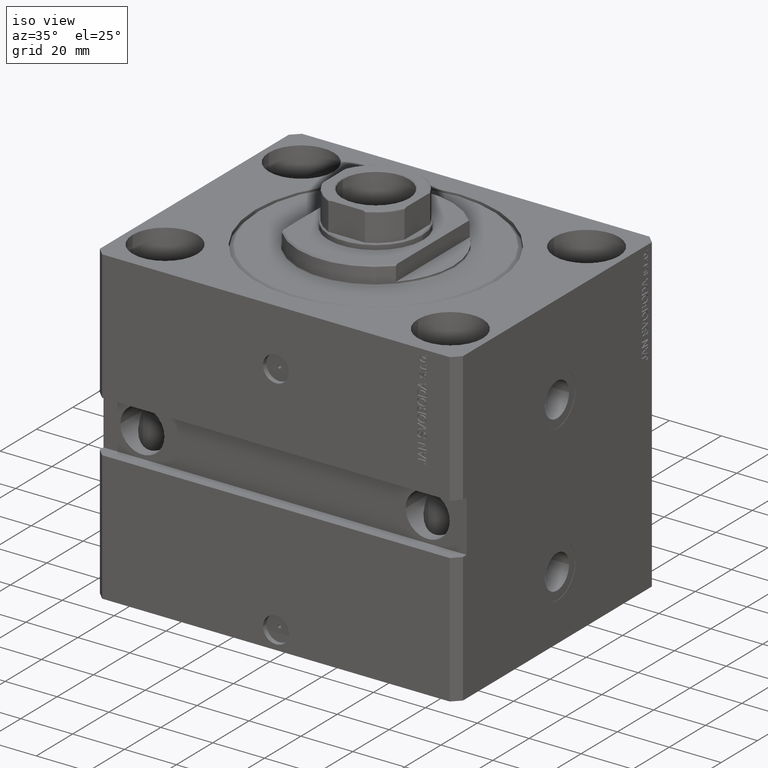
[diagram: clean part render]
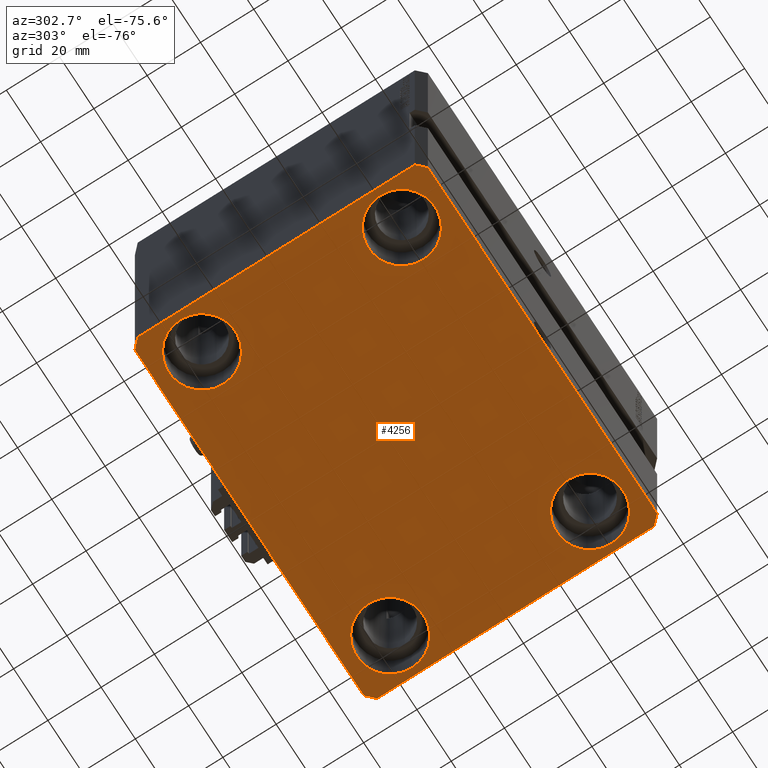
[diagram: tour spotlight — one face highlighted and labeled with its STEP entity id]
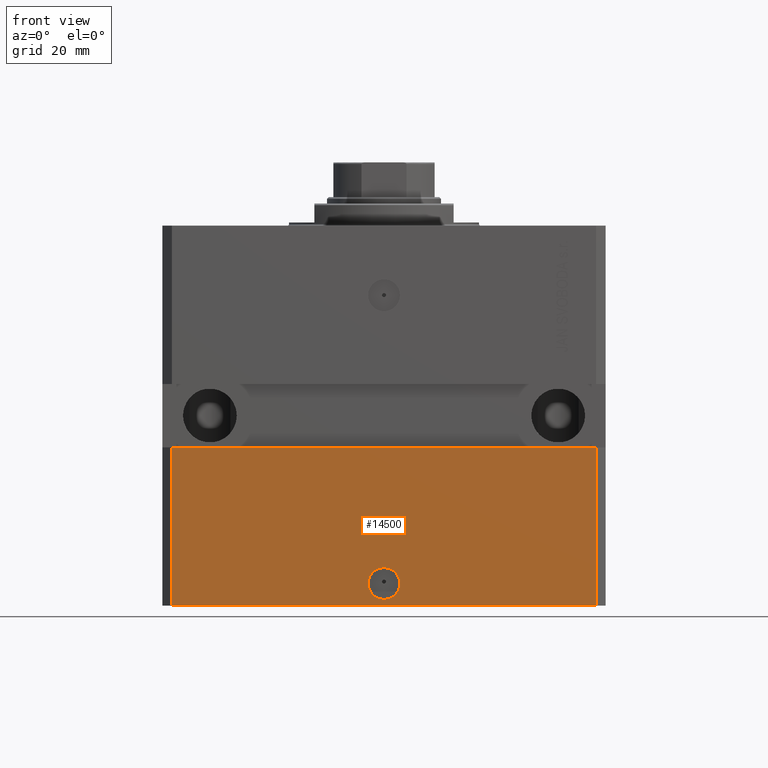
[diagram: tour spotlight — one face highlighted and labeled with its STEP entity id]
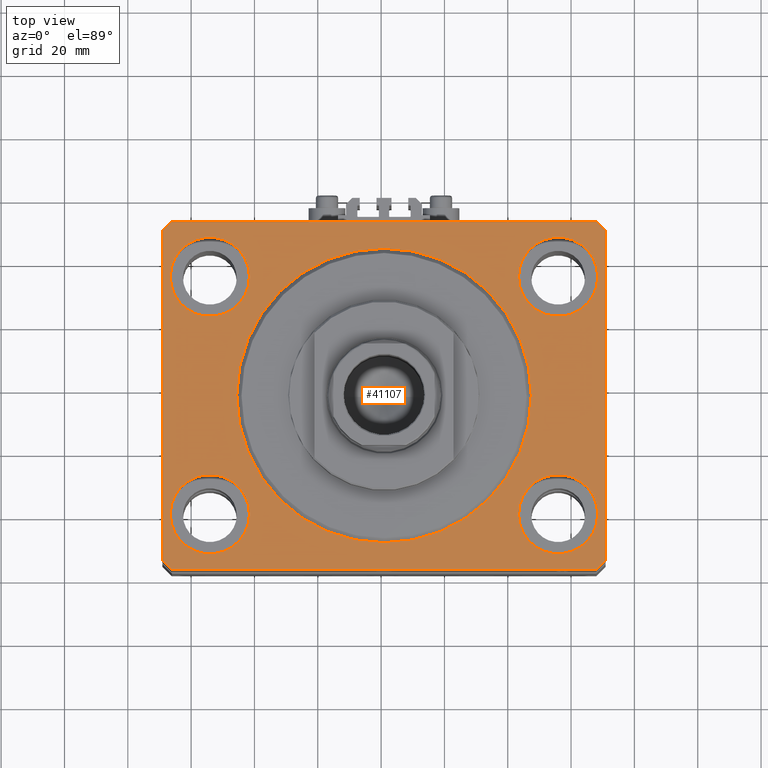
[diagram: tour spotlight — one face highlighted and labeled with its STEP entity id]
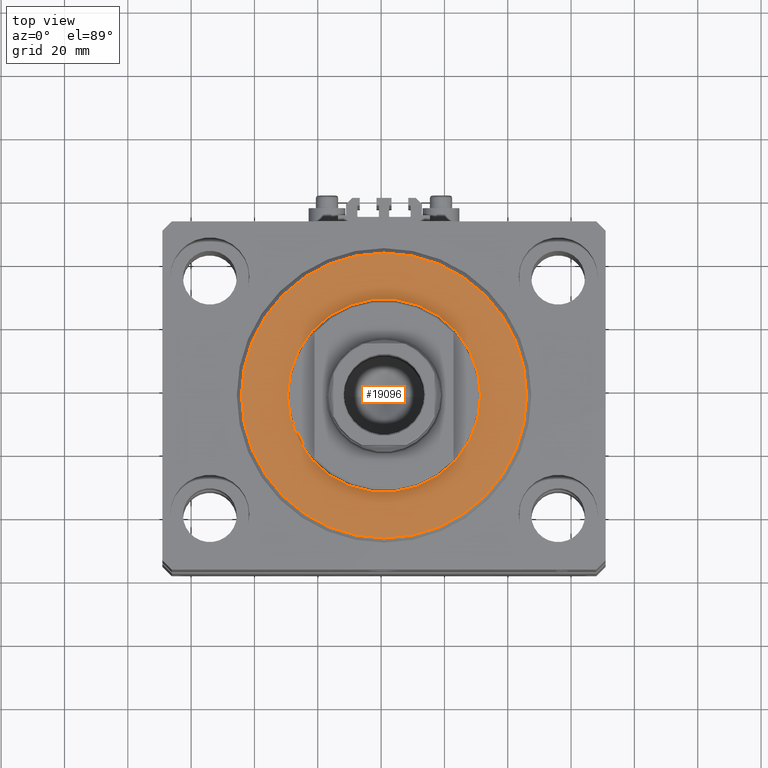
[diagram: tour spotlight — one face highlighted and labeled with its STEP entity id]
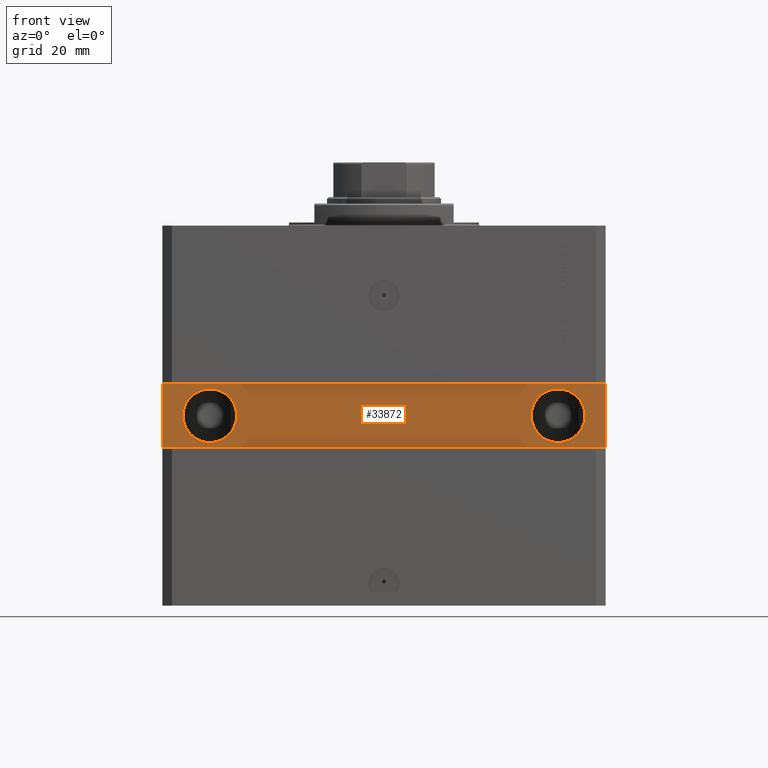
[diagram: tour spotlight — one face highlighted and labeled with its STEP entity id]
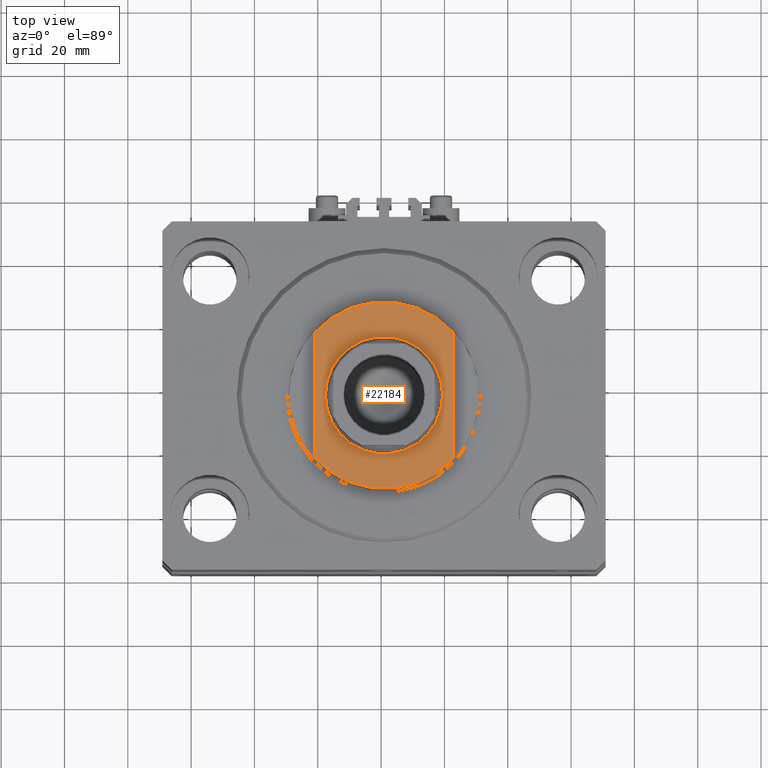
[diagram: tour spotlight — one face highlighted and labeled with its STEP entity id]
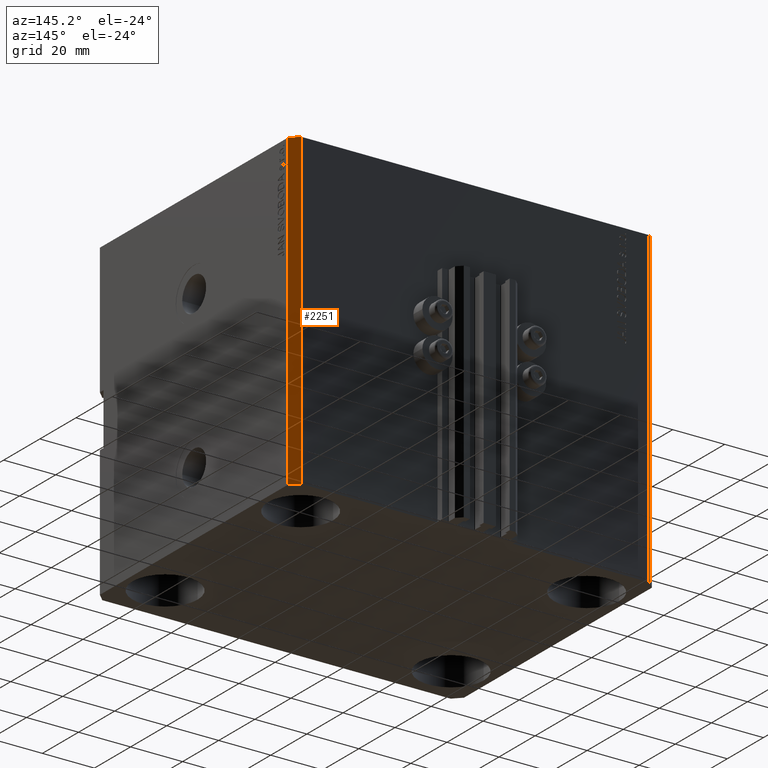
[diagram: tour spotlight — one face highlighted and labeled with its STEP entity id]
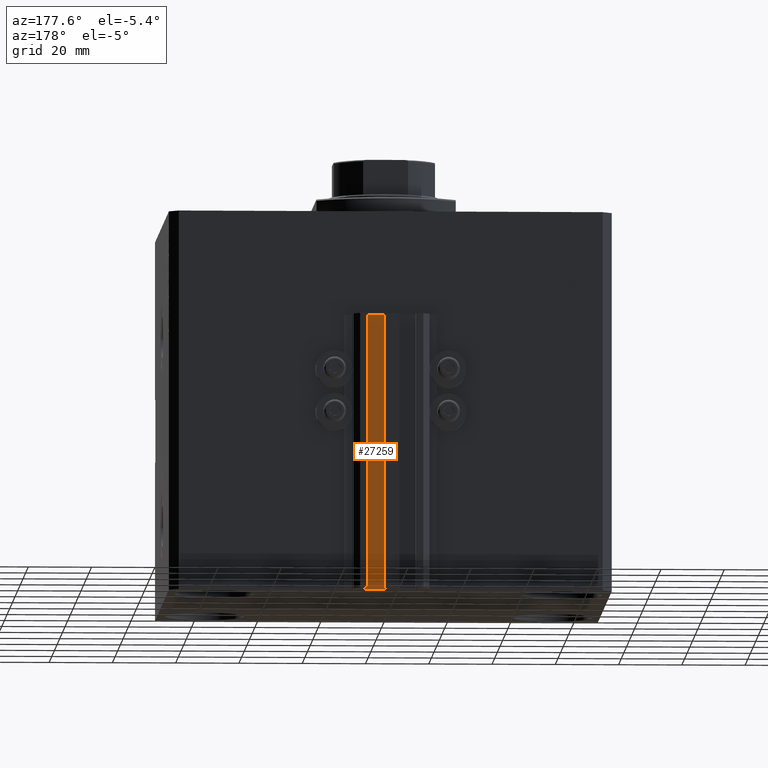
[diagram: tour spotlight — one face highlighted and labeled with its STEP entity id]
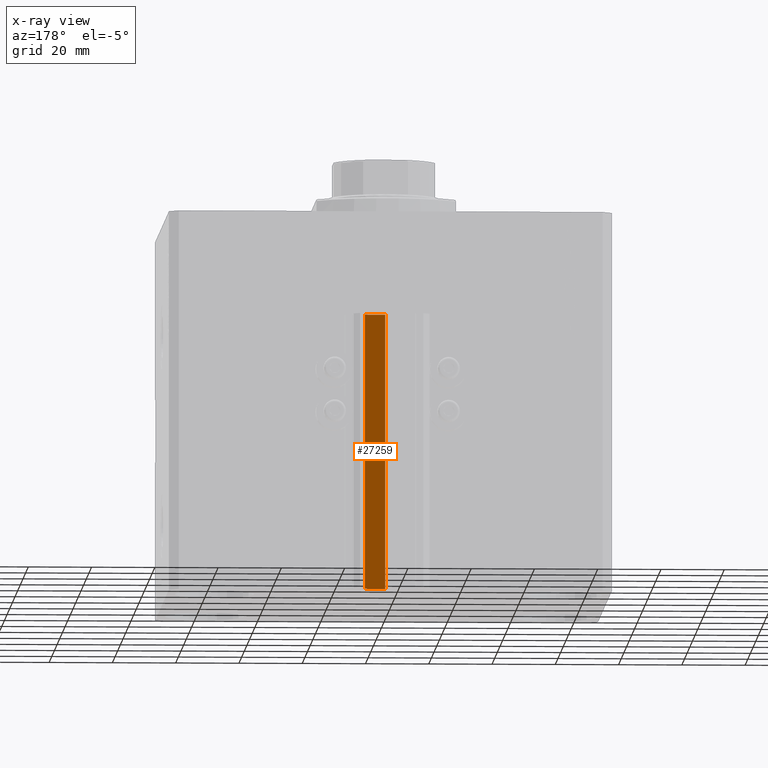
[diagram: x-ray of the same camera — body ghosted, this tour face saturated]
A machine part: a face-by-face anatomy tour. The part has 1112 B-rep faces; the first image is the clean iso view, then the 8 largest visible faces are spotlighted one at a time (largest first), each with its STEP entity span.

Face 1 — auxiliary view, entity #4256. In plain terms, the highlighted planar face has unit normal (0, 0, 1).
Definition (entity closure, byte-faithful):
#107 = LINE ( 'NONE', #23036, #12088 ) ;
#870 = FACE_OUTER_BOUND ( 'NONE', #7018, .T. ) ;
#1341 = DIRECTION ( 'NONE',  ( -0.000000000000000000, -0.000000000000000000, 1.000000000000000000 ) ) ;
#1417 = CARTESIAN_POINT ( 'NONE',  ( -70.00000000000001421, -51.99999999999999289, -120.0000000000000000 ) ) ;
#1512 = VERTEX_POINT ( 'NONE', #31314 ) ;
#2491 = VERTEX_POINT ( 'NONE', #3172 ) ;
#3172 = CARTESIAN_POINT ( 'NONE',  ( 42.50000000000000711, 37.50000000000002132, -120.0000000000000000 ) ) ;
#3397 = DIRECTION ( 'NONE',  ( 1.000000000000000000, 0.000000000000000000, -0.000000000000000000 ) ) ;
#3498 = CARTESIAN_POINT ( 'NONE',  ( 67.00000000000001421, -54.99999999999997868, -120.0000000000000000 ) ) ;
#3741 = AXIS2_PLACEMENT_3D ( 'NONE', #47228, #32169, #39579 ) ;
#3828 = ORIENTED_EDGE ( 'NONE', *, *, #22350, .F. ) ;
#4256 = ADVANCED_FACE ( 'NONE', ( #34657, #25855, #7100, #8507, #870 ), #20096, .F. ) ;
#4482 = DIRECTION ( 'NONE',  ( -0.000000000000000000, -0.000000000000000000, 1.000000000000000000 ) ) ;
#4554 = VECTOR ( 'NONE', #9128, 1000.000000000000000 ) ;
#5275 = DIRECTION ( 'NONE',  ( 1.000000000000000000, 0.000000000000000000, 0.000000000000000000 ) ) ;
#6150 = AXIS2_PLACEMENT_3D ( 'NONE', #45553, #39106, #20360 ) ;
#6337 = DIRECTION ( 'NONE',  ( 1.000000000000000000, 1.553483709829976241E-16, 0.000000000000000000 ) ) ;
#7018 = EDGE_LOOP ( 'NONE', ( #8167, #34936, #3828, #48119, #39741, #26952, #13043, #42733 ) ) ;
#7100 = FACE_BOUND ( 'NONE', #26083, .T. ) ;
#7173 = ORIENTED_EDGE ( 'NONE', *, *, #44884, .T. ) ;
#7261 = LINE ( 'NONE', #37115, #17417 ) ;
#7598 = CARTESIAN_POINT ( 'NONE',  ( 55.00000000000000711, -37.50000000000000711, -120.0000000000000000 ) ) ;
#7698 = VERTEX_POINT ( 'NONE', #12180 ) ;
#7734 = CARTESIAN_POINT ( 'NONE',  ( 67.00000000000061107, 55.00000000000002132, -120.0000000000000000 ) ) ;
#7838 = VECTOR ( 'NONE', #42867, 1000.000000000000000 ) ;
#8005 = VERTEX_POINT ( 'NONE', #3498 ) ;
#8167 = ORIENTED_EDGE ( 'NONE', *, *, #32422, .F. ) ;
#8260 = AXIS2_PLACEMENT_3D ( 'NONE', #30947, #22145, #3397 ) ;
#8507 = FACE_BOUND ( 'NONE', #21220, .T. ) ;
#8794 = CARTESIAN_POINT ( 'NONE',  ( -70.00000000000001421, -51.99999999999999289, -120.0000000000000000 ) ) ;
#8806 = DIRECTION ( 'NONE',  ( -0.000000000000000000, -0.000000000000000000, 1.000000000000000000 ) ) ;
#9128 = DIRECTION ( 'NONE',  ( -0.7071067811865344721, 0.7071067811865606734, 0.000000000000000000 ) ) ;
#9465 = CARTESIAN_POINT ( 'NONE',  ( 70.00000000000000000, -51.99999999999999289, -120.0000000000000000 ) ) ;
#9524 = CARTESIAN_POINT ( 'NONE',  ( 70.00000000000000000, -51.99999999999999289, -120.0000000000000000 ) ) ;
#10407 = CARTESIAN_POINT ( 'NONE',  ( -67.00000000000000000, 55.00000000000000000, -120.0000000000000000 ) ) ;
#10865 = DIRECTION ( 'NONE',  ( 1.000000000000000000, 0.000000000000000000, 0.000000000000000000 ) ) ;
#10920 = AXIS2_PLACEMENT_3D ( 'NONE', #42305, #1341, #5275 ) ;
#10972 = EDGE_LOOP ( 'NONE', ( #35968, #39027 ) ) ;
#11108 = EDGE_CURVE ( 'NONE', #24279, #31481, #42937, .T. ) ;
#11179 = DIRECTION ( 'NONE',  ( 1.000000000000000000, 0.000000000000000000, 0.000000000000000000 ) ) ;
#11922 = CIRCLE ( 'NONE', #39496, 12.49999999999999645 ) ;
#12088 = VECTOR ( 'NONE', #34375, 1000.000000000000000 ) ;
#12104 = CARTESIAN_POINT ( 'NONE',  ( 70.00000000000056843, 51.99999999999996447, -120.0000000000000000 ) ) ;
#12180 = CARTESIAN_POINT ( 'NONE',  ( 67.50000000000000000, 37.50000000000002132, -120.0000000000000000 ) ) ;
#12405 = CIRCLE ( 'NONE', #3741, 12.49999999999999645 ) ;
#13043 = ORIENTED_EDGE ( 'NONE', *, *, #22389, .F. ) ;
#13242 = CARTESIAN_POINT ( 'NONE',  ( 55.00000000000000711, -37.50000000000000711, -120.0000000000000000 ) ) ;
#13290 = AXIS2_PLACEMENT_3D ( 'NONE', #13242, #8806, #39394 ) ;
#15021 = DIRECTION ( 'NONE',  ( 1.000000000000000000, 0.000000000000000000, 0.000000000000000000 ) ) ;
#15654 = CIRCLE ( 'NONE', #18792, 12.49999999999999645 ) ;
#15848 = EDGE_LOOP ( 'NONE', ( #46517, #44848 ) ) ;
#16807 = VERTEX_POINT ( 'NONE', #31430 ) ;
#17054 = EDGE_CURVE ( 'NONE', #47843, #16807, #17236, .T. ) ;
#17236 = CIRCLE ( 'NONE', #42466, 12.49999999999999645 ) ;
#17417 = VECTOR ( 'NONE', #33666, 1000.000000000000000 ) ;
#18010 = EDGE_CURVE ( 'NONE', #22122, #39262, #41903, .T. ) ;
#18792 = AXIS2_PLACEMENT_3D ( 'NONE', #44419, #33300, #10865 ) ;
#19608 = VERTEX_POINT ( 'NONE', #48141 ) ;
#19645 = EDGE_CURVE ( 'NONE', #19608, #23886, #21021, .T. ) ;
#20096 = PLANE ( 'NONE',  #8260 ) ;
#20360 = DIRECTION ( 'NONE',  ( 1.000000000000000000, 0.000000000000000000, 0.000000000000000000 ) ) ;
#21021 = LINE ( 'NONE', #10407, #48077 ) ;
#21220 = EDGE_LOOP ( 'NONE', ( #25521, #24636 ) ) ;
#21515 = CARTESIAN_POINT ( 'NONE',  ( -55.00000000000000711, -37.50000000000000711, -120.0000000000000000 ) ) ;
#22122 = VERTEX_POINT ( 'NONE', #8794 ) ;
#22145 = DIRECTION ( 'NONE',  ( 0.000000000000000000, 0.000000000000000000, 1.000000000000000000 ) ) ;
#22153 = VECTOR ( 'NONE', #24808, 1000.000000000000000 ) ;
#22350 = EDGE_CURVE ( 'NONE', #23124, #24279, #43334, .T. ) ;
#22389 = EDGE_CURVE ( 'NONE', #23886, #22122, #7261, .T. ) ;
#22575 = EDGE_CURVE ( 'NONE', #26879, #1512, #11922, .T. ) ;
#22767 = CARTESIAN_POINT ( 'NONE',  ( -55.00000000000000711, 37.49999999999999289, -120.0000000000000000 ) ) ;
#23036 = CARTESIAN_POINT ( 'NONE',  ( 67.00000000000061107, 55.00000000000002132, -120.0000000000000000 ) ) ;
#23124 = VERTEX_POINT ( 'NONE', #9465 ) ;
#23886 = VERTEX_POINT ( 'NONE', #44361 ) ;
#24279 = VERTEX_POINT ( 'NONE', #46905 ) ;
#24636 = ORIENTED_EDGE ( 'NONE', *, *, #43258, .T. ) ;
#24808 = DIRECTION ( 'NONE',  ( 5.337610695313255329E-15, 1.000000000000000000, 0.000000000000000000 ) ) ;
#25074 = CIRCLE ( 'NONE', #10920, 12.49999999999999645 ) ;
#25521 = ORIENTED_EDGE ( 'NONE', *, *, #17054, .T. ) ;
#25539 = DIRECTION ( 'NONE',  ( 0.7071067811865474617, 0.7071067811865474617, 0.000000000000000000 ) ) ;
#25855 = FACE_BOUND ( 'NONE', #15848, .T. ) ;
#26083 = EDGE_LOOP ( 'NONE', ( #35296, #7173 ) ) ;
#26879 = VERTEX_POINT ( 'NONE', #42103 ) ;
#26952 = ORIENTED_EDGE ( 'NONE', *, *, #18010, .F. ) ;
#27097 = VECTOR ( 'NONE', #6337, 1000.000000000000000 ) ;
#28209 = CIRCLE ( 'NONE', #6150, 12.49999999999999645 ) ;
#28759 = CARTESIAN_POINT ( 'NONE',  ( 67.00000000000001421, -54.99999999999997868, -120.0000000000000000 ) ) ;
#30149 = EDGE_CURVE ( 'NONE', #39262, #8005, #39914, .T. ) ;
#30718 = CARTESIAN_POINT ( 'NONE',  ( 42.50000000000000711, -37.50000000000000711, -120.0000000000000000 ) ) ;
#30874 = DIRECTION ( 'NONE',  ( 1.000000000000000000, 0.000000000000000000, 0.000000000000000000 ) ) ;
#30947 = CARTESIAN_POINT ( 'NONE',  ( 0.000000000000000000, 0.000000000000000000, -120.0000000000000000 ) ) ;
#31314 = CARTESIAN_POINT ( 'NONE',  ( -67.50000000000000000, -37.50000000000000711, -120.0000000000000000 ) ) ;
#31430 = CARTESIAN_POINT ( 'NONE',  ( -42.50000000000000711, 37.49999999999999289, -120.0000000000000000 ) ) ;
#31481 = VERTEX_POINT ( 'NONE', #7734 ) ;
#32006 = CARTESIAN_POINT ( 'NONE',  ( -67.00000000000001421, -55.00000000000000000, -120.0000000000000000 ) ) ;
#32169 = DIRECTION ( 'NONE',  ( -0.000000000000000000, -0.000000000000000000, 1.000000000000000000 ) ) ;
#32422 = EDGE_CURVE ( 'NONE', #31481, #19608, #107, .T. ) ;
#32780 = CIRCLE ( 'NONE', #41464, 12.49999999999999645 ) ;
#33300 = DIRECTION ( 'NONE',  ( -0.000000000000000000, -0.000000000000000000, 1.000000000000000000 ) ) ;
#33666 = DIRECTION ( 'NONE',  ( -2.668805347656626678E-16, -1.000000000000000000, 0.000000000000000000 ) ) ;
#34375 = DIRECTION ( 'NONE',  ( -1.000000000000000000, -1.553483709829969339E-16, 0.000000000000000000 ) ) ;
#34657 = FACE_BOUND ( 'NONE', #10972, .T. ) ;
#34936 = ORIENTED_EDGE ( 'NONE', *, *, #11108, .F. ) ;
#35296 = ORIENTED_EDGE ( 'NONE', *, *, #44813, .T. ) ;
#35968 = ORIENTED_EDGE ( 'NONE', *, *, #44085, .T. ) ;
#37115 = CARTESIAN_POINT ( 'NONE',  ( -69.99999999999998579, 51.99999999999999289, -120.0000000000000000 ) ) ;
#37732 = EDGE_CURVE ( 'NONE', #8005, #23124, #47508, .T. ) ;
#39027 = ORIENTED_EDGE ( 'NONE', *, *, #22575, .T. ) ;
#39106 = DIRECTION ( 'NONE',  ( -0.000000000000000000, -0.000000000000000000, 1.000000000000000000 ) ) ;
#39262 = VERTEX_POINT ( 'NONE', #47884 ) ;
#39394 = DIRECTION ( 'NONE',  ( 1.000000000000000000, 0.000000000000000000, 0.000000000000000000 ) ) ;
#39496 = AXIS2_PLACEMENT_3D ( 'NONE', #21515, #4482, #30874 ) ;
#39579 = DIRECTION ( 'NONE',  ( 1.000000000000000000, 0.000000000000000000, 0.000000000000000000 ) ) ;
#39666 = EDGE_CURVE ( 'NONE', #45583, #41573, #32780, .T. ) ;
#39741 = ORIENTED_EDGE ( 'NONE', *, *, #30149, .F. ) ;
#39914 = LINE ( 'NONE', #32006, #27097 ) ;
#40084 = CIRCLE ( 'NONE', #13290, 12.49999999999999645 ) ;
#40265 = DIRECTION ( 'NONE',  ( -0.7071067811865451302, -0.7071067811865500152, 0.000000000000000000 ) ) ;
#40327 = CARTESIAN_POINT ( 'NONE',  ( 67.50000000000000000, -37.50000000000000711, -120.0000000000000000 ) ) ;
#40914 = DIRECTION ( 'NONE',  ( -0.000000000000000000, -0.000000000000000000, 1.000000000000000000 ) ) ;
#41062 = CARTESIAN_POINT ( 'NONE',  ( -67.50000000000000000, 37.49999999999999289, -120.0000000000000000 ) ) ;
#41464 = AXIS2_PLACEMENT_3D ( 'NONE', #7598, #40914, #15021 ) ;
#41573 = VERTEX_POINT ( 'NONE', #40327 ) ;
#41903 = LINE ( 'NONE', #1417, #7838 ) ;
#42103 = CARTESIAN_POINT ( 'NONE',  ( -42.50000000000000711, -37.50000000000000711, -120.0000000000000000 ) ) ;
#42305 = CARTESIAN_POINT ( 'NONE',  ( 55.00000000000000711, 37.50000000000002132, -120.0000000000000000 ) ) ;
#42466 = AXIS2_PLACEMENT_3D ( 'NONE', #22767, #44979, #11179 ) ;
#42733 = ORIENTED_EDGE ( 'NONE', *, *, #19645, .F. ) ;
#42867 = DIRECTION ( 'NONE',  ( 0.7071067811865466846, -0.7071067811865483499, 0.000000000000000000 ) ) ;
#42937 = LINE ( 'NONE', #12104, #4554 ) ;
#43258 = EDGE_CURVE ( 'NONE', #16807, #47843, #12405, .T. ) ;
#43334 = LINE ( 'NONE', #9524, #22153 ) ;
#44085 = EDGE_CURVE ( 'NONE', #1512, #26879, #28209, .T. ) ;
#44361 = CARTESIAN_POINT ( 'NONE',  ( -69.99999999999998579, 51.99999999999999289, -120.0000000000000000 ) ) ;
#44419 = CARTESIAN_POINT ( 'NONE',  ( 55.00000000000000711, 37.50000000000002132, -120.0000000000000000 ) ) ;
#44523 = EDGE_CURVE ( 'NONE', #41573, #45583, #40084, .T. ) ;
#44813 = EDGE_CURVE ( 'NONE', #2491, #7698, #25074, .T. ) ;
#44848 = ORIENTED_EDGE ( 'NONE', *, *, #44523, .T. ) ;
#44884 = EDGE_CURVE ( 'NONE', #7698, #2491, #15654, .T. ) ;
#44979 = DIRECTION ( 'NONE',  ( -0.000000000000000000, -0.000000000000000000, 1.000000000000000000 ) ) ;
#45553 = CARTESIAN_POINT ( 'NONE',  ( -55.00000000000000711, -37.50000000000000711, -120.0000000000000000 ) ) ;
#45583 = VERTEX_POINT ( 'NONE', #30718 ) ;
#46517 = ORIENTED_EDGE ( 'NONE', *, *, #39666, .T. ) ;
#46905 = CARTESIAN_POINT ( 'NONE',  ( 70.00000000000056843, 51.99999999999996447, -120.0000000000000000 ) ) ;
#47228 = CARTESIAN_POINT ( 'NONE',  ( -55.00000000000000711, 37.49999999999999289, -120.0000000000000000 ) ) ;
#47508 = LINE ( 'NONE', #28759, #48458 ) ;
#47843 = VERTEX_POINT ( 'NONE', #41062 ) ;
#47884 = CARTESIAN_POINT ( 'NONE',  ( -67.00000000000001421, -55.00000000000000000, -120.0000000000000000 ) ) ;
#48077 = VECTOR ( 'NONE', #40265, 1000.000000000000114 ) ;
#48119 = ORIENTED_EDGE ( 'NONE', *, *, #37732, .F. ) ;
#48141 = CARTESIAN_POINT ( 'NONE',  ( -67.00000000000000000, 55.00000000000000000, -120.0000000000000000 ) ) ;
#48458 = VECTOR ( 'NONE', #25539, 1000.000000000000114 ) ;

Face 2 — front view, entity #14500. In plain terms, the highlighted planar face has unit normal (0, -1, 0).
Definition (entity closure, byte-faithful):
#566 = CARTESIAN_POINT ( 'NONE',  ( 67.00000000000001421, -54.99999999999997868, -120.0000000000000000 ) ) ;
#2930 = CARTESIAN_POINT ( 'NONE',  ( -4.999999999999997335, -54.99999999999998579, -112.9999999999999858 ) ) ;
#3319 = ORIENTED_EDGE ( 'NONE', *, *, #9706, .T. ) ;
#3498 = CARTESIAN_POINT ( 'NONE',  ( 67.00000000000001421, -54.99999999999997868, -120.0000000000000000 ) ) ;
#4742 = LINE ( 'NONE', #566, #26593 ) ;
#5538 = DIRECTION ( 'NONE',  ( 0.000000000000000000, 0.000000000000000000, 1.000000000000000000 ) ) ;
#6337 = DIRECTION ( 'NONE',  ( 1.000000000000000000, 1.553483709829976241E-16, 0.000000000000000000 ) ) ;
#6418 = VERTEX_POINT ( 'NONE', #29265 ) ;
#6822 = VERTEX_POINT ( 'NONE', #2930 ) ;
#7382 = PLANE ( 'NONE',  #47091 ) ;
#7768 = ORIENTED_EDGE ( 'NONE', *, *, #19256, .F. ) ;
#8005 = VERTEX_POINT ( 'NONE', #3498 ) ;
#8202 = DIRECTION ( 'NONE',  ( 0.000000000000000000, 0.000000000000000000, 1.000000000000000000 ) ) ;
#8234 = VERTEX_POINT ( 'NONE', #31590 ) ;
#9578 = DIRECTION ( 'NONE',  ( 1.000000000000000000, 1.553483709829976241E-16, 0.000000000000000000 ) ) ;
#9706 = EDGE_CURVE ( 'NONE', #8005, #45264, #4742, .T. ) ;
#11126 = EDGE_LOOP ( 'NONE', ( #27921, #7768, #20910, #3319 ) ) ;
#12947 = EDGE_CURVE ( 'NONE', #8234, #45264, #15644, .T. ) ;
#14072 = AXIS2_PLACEMENT_3D ( 'NONE', #48221, #14435, #39868 ) ;
#14435 = DIRECTION ( 'NONE',  ( 1.176083712526788232E-16, -1.000000000000000000, 0.000000000000000000 ) ) ;
#14500 = ADVANCED_FACE ( 'NONE', ( #30570, #45873 ), #7382, .T. ) ;
#15644 = LINE ( 'NONE', #34622, #18815 ) ;
#15740 = EDGE_CURVE ( 'NONE', #6822, #6418, #44008, .T. ) ;
#18087 = ORIENTED_EDGE ( 'NONE', *, *, #38164, .F. ) ;
#18815 = VECTOR ( 'NONE', #38075, 1000.000000000000000 ) ;
#19256 = EDGE_CURVE ( 'NONE', #39262, #8234, #24309, .T. ) ;
#20910 = ORIENTED_EDGE ( 'NONE', *, *, #30149, .T. ) ;
#22434 = CARTESIAN_POINT ( 'NONE',  ( -67.00000000000001421, -55.00000000000000000, -120.0000000000000000 ) ) ;
#24128 = ORIENTED_EDGE ( 'NONE', *, *, #15740, .F. ) ;
#24309 = LINE ( 'NONE', #36136, #32270 ) ;
#26593 = VECTOR ( 'NONE', #8202, 1000.000000000000000 ) ;
#27097 = VECTOR ( 'NONE', #6337, 1000.000000000000000 ) ;
#27135 = DIRECTION ( 'NONE',  ( 1.000000000000000000, 0.000000000000000000, 0.000000000000000000 ) ) ;
#27322 = CARTESIAN_POINT ( 'NONE',  ( 67.00000000000001421, -54.99999999999997868, -70.00000000000000000 ) ) ;
#27921 = ORIENTED_EDGE ( 'NONE', *, *, #12947, .F. ) ;
#28389 = EDGE_LOOP ( 'NONE', ( #18087, #24128 ) ) ;
#29265 = CARTESIAN_POINT ( 'NONE',  ( 5.000000000000015099, -54.99999999999998579, -112.9999999999999858 ) ) ;
#29576 = CIRCLE ( 'NONE', #33526, 5.000000000000006217 ) ;
#30149 = EDGE_CURVE ( 'NONE', #39262, #8005, #39914, .T. ) ;
#30570 = FACE_BOUND ( 'NONE', #28389, .T. ) ;
#31590 = CARTESIAN_POINT ( 'NONE',  ( -67.00000000000002842, -54.99999999999999289, -70.00000000000000000 ) ) ;
#32006 = CARTESIAN_POINT ( 'NONE',  ( -67.00000000000001421, -55.00000000000000000, -120.0000000000000000 ) ) ;
#32270 = VECTOR ( 'NONE', #5538, 1000.000000000000000 ) ;
#33526 = AXIS2_PLACEMENT_3D ( 'NONE', #42193, #38237, #27135 ) ;
#34622 = CARTESIAN_POINT ( 'NONE',  ( -70.00000000000001421, -54.99999999999999289, -70.00000000000000000 ) ) ;
#36136 = CARTESIAN_POINT ( 'NONE',  ( -67.00000000000001421, -55.00000000000000000, -120.0000000000000000 ) ) ;
#37482 = DIRECTION ( 'NONE',  ( 1.553483709829976241E-16, -1.000000000000000000, 0.000000000000000000 ) ) ;
#38075 = DIRECTION ( 'NONE',  ( 1.000000000000000000, 9.912705577010323084E-17, 0.000000000000000000 ) ) ;
#38164 = EDGE_CURVE ( 'NONE', #6418, #6822, #29576, .T. ) ;
#38237 = DIRECTION ( 'NONE',  ( 1.176083712526788232E-16, -1.000000000000000000, 0.000000000000000000 ) ) ;
#39262 = VERTEX_POINT ( 'NONE', #47884 ) ;
#39868 = DIRECTION ( 'NONE',  ( 1.000000000000000000, 0.000000000000000000, 0.000000000000000000 ) ) ;
#39914 = LINE ( 'NONE', #32006, #27097 ) ;
#42193 = CARTESIAN_POINT ( 'NONE',  ( 8.544160404064867231E-15, -54.99999999999998579, -112.9999999999999858 ) ) ;
#44008 = CIRCLE ( 'NONE', #14072, 5.000000000000006217 ) ;
#45264 = VERTEX_POINT ( 'NONE', #27322 ) ;
#45873 = FACE_OUTER_BOUND ( 'NONE', #11126, .T. ) ;
#47091 = AXIS2_PLACEMENT_3D ( 'NONE', #22434, #37482, #9578 ) ;
#47884 = CARTESIAN_POINT ( 'NONE',  ( -67.00000000000001421, -55.00000000000000000, -120.0000000000000000 ) ) ;
#48221 = CARTESIAN_POINT ( 'NONE',  ( 8.544160404064867231E-15, -54.99999999999998579, -112.9999999999999858 ) ) ;

Face 3 — top view, entity #41107. In plain terms, the highlighted planar face has unit normal (0, 0, 1).
Definition (entity closure, byte-faithful):
#221 = FACE_BOUND ( 'NONE', #36165, .T. ) ;
#701 = DIRECTION ( 'NONE',  ( -0.7071067811865344721, 0.7071067811865606734, 0.000000000000000000 ) ) ;
#1177 = DIRECTION ( 'NONE',  ( 0.000000000000000000, 0.000000000000000000, 1.000000000000000000 ) ) ;
#1335 = DIRECTION ( 'NONE',  ( 0.000000000000000000, 0.000000000000000000, 1.000000000000000000 ) ) ;
#1788 = EDGE_CURVE ( 'NONE', #19487, #24322, #16229, .T. ) ;
#1822 = DIRECTION ( 'NONE',  ( 1.000000000000000000, 0.000000000000000000, 0.000000000000000000 ) ) ;
#1827 = CARTESIAN_POINT ( 'NONE',  ( 55.00000000000000711, 37.50000000000002132, 0.000000000000000000 ) ) ;
#1883 = VECTOR ( 'NONE', #12476, 1000.000000000000000 ) ;
#2003 = VERTEX_POINT ( 'NONE', #18663 ) ;
#2075 = DIRECTION ( 'NONE',  ( 0.000000000000000000, 0.000000000000000000, 1.000000000000000000 ) ) ;
#2470 = ORIENTED_EDGE ( 'NONE', *, *, #4860, .F. ) ;
#2494 = DIRECTION ( 'NONE',  ( 1.000000000000000000, 0.000000000000000000, 0.000000000000000000 ) ) ;
#2756 = CIRCLE ( 'NONE', #39818, 46.50000000000000000 ) ;
#2769 = VECTOR ( 'NONE', #35247, 1000.000000000000000 ) ;
#2863 = DIRECTION ( 'NONE',  ( 0.000000000000000000, 0.000000000000000000, 1.000000000000000000 ) ) ;
#2964 = EDGE_LOOP ( 'NONE', ( #37109, #12968, #10853, #24397, #30763, #6424, #25648, #7705 ) ) ;
#3453 = EDGE_CURVE ( 'NONE', #7754, #4836, #37423, .T. ) ;
#3709 = DIRECTION ( 'NONE',  ( 1.000000000000000000, 0.000000000000000000, 0.000000000000000000 ) ) ;
#3923 = FACE_BOUND ( 'NONE', #45028, .T. ) ;
#4181 = CARTESIAN_POINT ( 'NONE',  ( -67.50000000000000000, -37.50000000000000711, 0.000000000000000000 ) ) ;
#4243 = CARTESIAN_POINT ( 'NONE',  ( -67.00000000000001421, -55.00000000000000000, 0.000000000000000000 ) ) ;
#4791 = CARTESIAN_POINT ( 'NONE',  ( -67.00000000000000000, 55.00000000000000000, 0.000000000000000000 ) ) ;
#4836 = VERTEX_POINT ( 'NONE', #25196 ) ;
#4860 = EDGE_CURVE ( 'NONE', #30884, #14740, #20904, .T. ) ;
#5169 = EDGE_CURVE ( 'NONE', #35128, #29095, #2756, .T. ) ;
#5629 = VERTEX_POINT ( 'NONE', #18793 ) ;
#5799 = VECTOR ( 'NONE', #44287, 1000.000000000000114 ) ;
#5887 = AXIS2_PLACEMENT_3D ( 'NONE', #38834, #1335, #20327 ) ;
#6009 = DIRECTION ( 'NONE',  ( 1.000000000000000000, 0.000000000000000000, 0.000000000000000000 ) ) ;
#6077 = AXIS2_PLACEMENT_3D ( 'NONE', #1827, #2075, #6009 ) ;
#6129 = EDGE_CURVE ( 'NONE', #9775, #19487, #22907, .T. ) ;
#6330 = DIRECTION ( 'NONE',  ( 1.000000000000000000, 1.553483709829976241E-16, 0.000000000000000000 ) ) ;
#6424 = ORIENTED_EDGE ( 'NONE', *, *, #30481, .T. ) ;
#6568 = LINE ( 'NONE', #13998, #41491 ) ;
#6704 = CARTESIAN_POINT ( 'NONE',  ( -42.50000000000000711, -37.50000000000000711, 0.000000000000000000 ) ) ;
#7259 = EDGE_CURVE ( 'NONE', #24322, #22556, #28547, .T. ) ;
#7283 = EDGE_CURVE ( 'NONE', #22680, #26939, #6568, .T. ) ;
#7310 = CARTESIAN_POINT ( 'NONE',  ( 67.00000000000001421, -54.99999999999997868, 0.000000000000000000 ) ) ;
#7396 = CARTESIAN_POINT ( 'NONE',  ( -55.00000000000000711, 37.49999999999999289, 0.000000000000000000 ) ) ;
#7705 = ORIENTED_EDGE ( 'NONE', *, *, #6129, .T. ) ;
#7754 = VERTEX_POINT ( 'NONE', #15649 ) ;
#7827 = VERTEX_POINT ( 'NONE', #40273 ) ;
#8210 = CIRCLE ( 'NONE', #47581, 12.49999999999999645 ) ;
#8935 = CARTESIAN_POINT ( 'NONE',  ( 70.00000000000056843, 51.99999999999996447, 0.000000000000000000 ) ) ;
#9090 = DIRECTION ( 'NONE',  ( 0.000000000000000000, 0.000000000000000000, 1.000000000000000000 ) ) ;
#9453 = VERTEX_POINT ( 'NONE', #23564 ) ;
#9491 = EDGE_CURVE ( 'NONE', #5629, #12013, #37600, .T. ) ;
#9775 = VERTEX_POINT ( 'NONE', #8935 ) ;
#9835 = CARTESIAN_POINT ( 'NONE',  ( 70.00000000000000000, -51.99999999999999289, 0.000000000000000000 ) ) ;
#10656 = AXIS2_PLACEMENT_3D ( 'NONE', #14574, #29609, #2494 ) ;
#10823 = DIRECTION ( 'NONE',  ( 0.000000000000000000, 0.000000000000000000, 1.000000000000000000 ) ) ;
#10853 = ORIENTED_EDGE ( 'NONE', *, *, #26101, .T. ) ;
#11075 = CARTESIAN_POINT ( 'NONE',  ( 0.000000000000000000, 0.000000000000000000, 0.000000000000000000 ) ) ;
#11151 = AXIS2_PLACEMENT_3D ( 'NONE', #7396, #37497, #3709 ) ;
#11399 = VECTOR ( 'NONE', #43058, 1000.000000000000000 ) ;
#12013 = VERTEX_POINT ( 'NONE', #40793 ) ;
#12047 = PLANE ( 'NONE',  #22574 ) ;
#12082 = ORIENTED_EDGE ( 'NONE', *, *, #9491, .F. ) ;
#12476 = DIRECTION ( 'NONE',  ( -2.668805347656626678E-16, -1.000000000000000000, 0.000000000000000000 ) ) ;
#12968 = ORIENTED_EDGE ( 'NONE', *, *, #7259, .T. ) ;
#13259 = CARTESIAN_POINT ( 'NONE',  ( 55.00000000000000711, 37.50000000000002132, 0.000000000000000000 ) ) ;
#13987 = CIRCLE ( 'NONE', #6077, 12.49999999999999645 ) ;
#13998 = CARTESIAN_POINT ( 'NONE',  ( -67.00000000000001421, -55.00000000000000000, 0.000000000000000000 ) ) ;
#14188 = LINE ( 'NONE', #36629, #5799 ) ;
#14574 = CARTESIAN_POINT ( 'NONE',  ( -55.00000000000000711, -37.50000000000000711, 0.000000000000000000 ) ) ;
#14740 = VERTEX_POINT ( 'NONE', #6704 ) ;
#14776 = DIRECTION ( 'NONE',  ( 1.000000000000000000, 0.000000000000000000, 0.000000000000000000 ) ) ;
#15040 = CARTESIAN_POINT ( 'NONE',  ( -46.50000000000000000, 5.694607616035192278E-15, 0.000000000000000000 ) ) ;
#15274 = FACE_OUTER_BOUND ( 'NONE', #2964, .T. ) ;
#15537 = DIRECTION ( 'NONE',  ( 1.000000000000000000, 0.000000000000000000, 0.000000000000000000 ) ) ;
#15649 = CARTESIAN_POINT ( 'NONE',  ( -67.50000000000000000, 37.49999999999999289, 0.000000000000000000 ) ) ;
#16229 = LINE ( 'NONE', #31014, #26345 ) ;
#16829 = FACE_BOUND ( 'NONE', #17707, .T. ) ;
#17200 = DIRECTION ( 'NONE',  ( 1.000000000000000000, 0.000000000000000000, 0.000000000000000000 ) ) ;
#17707 = EDGE_LOOP ( 'NONE', ( #20255, #2470 ) ) ;
#18225 = CARTESIAN_POINT ( 'NONE',  ( 0.000000000000000000, 0.000000000000000000, 0.000000000000000000 ) ) ;
#18571 = CARTESIAN_POINT ( 'NONE',  ( -69.99999999999998579, 51.99999999999999289, 0.000000000000000000 ) ) ;
#18663 = CARTESIAN_POINT ( 'NONE',  ( 67.50000000000000000, 37.50000000000002132, 0.000000000000000000 ) ) ;
#18782 = ORIENTED_EDGE ( 'NONE', *, *, #31084, .F. ) ;
#18793 = CARTESIAN_POINT ( 'NONE',  ( 67.50000000000000000, -37.50000000000000711, 0.000000000000000000 ) ) ;
#19487 = VERTEX_POINT ( 'NONE', #31397 ) ;
#19663 = ORIENTED_EDGE ( 'NONE', *, *, #34231, .F. ) ;
#20207 = LINE ( 'NONE', #9835, #2769 ) ;
#20255 = ORIENTED_EDGE ( 'NONE', *, *, #21826, .F. ) ;
#20327 = DIRECTION ( 'NONE',  ( 1.000000000000000000, 0.000000000000000000, 0.000000000000000000 ) ) ;
#20904 = CIRCLE ( 'NONE', #10656, 12.49999999999999645 ) ;
#21826 = EDGE_CURVE ( 'NONE', #14740, #30884, #22943, .T. ) ;
#22556 = VERTEX_POINT ( 'NONE', #18571 ) ;
#22574 = AXIS2_PLACEMENT_3D ( 'NONE', #30795, #30070, #41425 ) ;
#22680 = VERTEX_POINT ( 'NONE', #4243 ) ;
#22901 = DIRECTION ( 'NONE',  ( 0.000000000000000000, 0.000000000000000000, 1.000000000000000000 ) ) ;
#22907 = LINE ( 'NONE', #38194, #43812 ) ;
#22943 = CIRCLE ( 'NONE', #41874, 12.49999999999999645 ) ;
#23343 = VECTOR ( 'NONE', #36918, 1000.000000000000114 ) ;
#23564 = CARTESIAN_POINT ( 'NONE',  ( 42.50000000000000711, 37.50000000000002132, 0.000000000000000000 ) ) ;
#23716 = EDGE_CURVE ( 'NONE', #4836, #7754, #28503, .T. ) ;
#23864 = CARTESIAN_POINT ( 'NONE',  ( 70.00000000000000000, -51.99999999999999289, 0.000000000000000000 ) ) ;
#24060 = LINE ( 'NONE', #42322, #11399 ) ;
#24322 = VERTEX_POINT ( 'NONE', #4791 ) ;
#24397 = ORIENTED_EDGE ( 'NONE', *, *, #31362, .T. ) ;
#24853 = CARTESIAN_POINT ( 'NONE',  ( -67.00000000000000000, 55.00000000000000000, 0.000000000000000000 ) ) ;
#25196 = CARTESIAN_POINT ( 'NONE',  ( -42.50000000000000711, 37.49999999999999289, 0.000000000000000000 ) ) ;
#25254 = DIRECTION ( 'NONE',  ( 0.000000000000000000, 0.000000000000000000, 1.000000000000000000 ) ) ;
#25627 = CARTESIAN_POINT ( 'NONE',  ( 46.50000000000000000, 0.000000000000000000, 0.000000000000000000 ) ) ;
#25648 = ORIENTED_EDGE ( 'NONE', *, *, #37222, .T. ) ;
#26101 = EDGE_CURVE ( 'NONE', #22556, #7827, #42816, .T. ) ;
#26324 = CIRCLE ( 'NONE', #44410, 46.50000000000000000 ) ;
#26345 = VECTOR ( 'NONE', #31506, 1000.000000000000000 ) ;
#26939 = VERTEX_POINT ( 'NONE', #7310 ) ;
#28503 = CIRCLE ( 'NONE', #11151, 12.49999999999999645 ) ;
#28547 = LINE ( 'NONE', #24853, #23343 ) ;
#29095 = VERTEX_POINT ( 'NONE', #15040 ) ;
#29264 = CARTESIAN_POINT ( 'NONE',  ( 55.00000000000000711, -37.50000000000000711, 0.000000000000000000 ) ) ;
#29609 = DIRECTION ( 'NONE',  ( 0.000000000000000000, 0.000000000000000000, 1.000000000000000000 ) ) ;
#30070 = DIRECTION ( 'NONE',  ( 0.000000000000000000, 0.000000000000000000, 1.000000000000000000 ) ) ;
#30261 = AXIS2_PLACEMENT_3D ( 'NONE', #13259, #1177, #17200 ) ;
#30481 = EDGE_CURVE ( 'NONE', #26939, #45378, #14188, .T. ) ;
#30763 = ORIENTED_EDGE ( 'NONE', *, *, #7283, .T. ) ;
#30795 = CARTESIAN_POINT ( 'NONE',  ( 0.000000000000000000, 0.000000000000000000, 0.000000000000000000 ) ) ;
#30884 = VERTEX_POINT ( 'NONE', #4181 ) ;
#31014 = CARTESIAN_POINT ( 'NONE',  ( 67.00000000000061107, 55.00000000000002132, 0.000000000000000000 ) ) ;
#31019 = CIRCLE ( 'NONE', #30261, 12.49999999999999645 ) ;
#31084 = EDGE_CURVE ( 'NONE', #12013, #5629, #8210, .T. ) ;
#31362 = EDGE_CURVE ( 'NONE', #7827, #22680, #24060, .T. ) ;
#31397 = CARTESIAN_POINT ( 'NONE',  ( 67.00000000000061107, 55.00000000000002132, 0.000000000000000000 ) ) ;
#31506 = DIRECTION ( 'NONE',  ( -1.000000000000000000, -1.553483709829969339E-16, 0.000000000000000000 ) ) ;
#32197 = EDGE_LOOP ( 'NONE', ( #36951, #44728 ) ) ;
#32578 = ORIENTED_EDGE ( 'NONE', *, *, #5169, .F. ) ;
#33602 = EDGE_CURVE ( 'NONE', #9453, #2003, #31019, .T. ) ;
#34231 = EDGE_CURVE ( 'NONE', #29095, #35128, #26324, .T. ) ;
#35128 = VERTEX_POINT ( 'NONE', #25627 ) ;
#35247 = DIRECTION ( 'NONE',  ( 5.337610695313255329E-15, 1.000000000000000000, 0.000000000000000000 ) ) ;
#36165 = EDGE_LOOP ( 'NONE', ( #32578, #19663 ) ) ;
#36629 = CARTESIAN_POINT ( 'NONE',  ( 67.00000000000001421, -54.99999999999997868, 0.000000000000000000 ) ) ;
#36918 = DIRECTION ( 'NONE',  ( -0.7071067811865451302, -0.7071067811865500152, 0.000000000000000000 ) ) ;
#36951 = ORIENTED_EDGE ( 'NONE', *, *, #23716, .F. ) ;
#37109 = ORIENTED_EDGE ( 'NONE', *, *, #1788, .T. ) ;
#37222 = EDGE_CURVE ( 'NONE', #45378, #9775, #20207, .T. ) ;
#37423 = CIRCLE ( 'NONE', #5887, 12.49999999999999645 ) ;
#37497 = DIRECTION ( 'NONE',  ( 0.000000000000000000, 0.000000000000000000, 1.000000000000000000 ) ) ;
#37600 = CIRCLE ( 'NONE', #39962, 12.49999999999999645 ) ;
#37959 = FACE_BOUND ( 'NONE', #32197, .T. ) ;
#38194 = CARTESIAN_POINT ( 'NONE',  ( 70.00000000000056843, 51.99999999999996447, 0.000000000000000000 ) ) ;
#38834 = CARTESIAN_POINT ( 'NONE',  ( -55.00000000000000711, 37.49999999999999289, 0.000000000000000000 ) ) ;
#38987 = ORIENTED_EDGE ( 'NONE', *, *, #33602, .F. ) ;
#39818 = AXIS2_PLACEMENT_3D ( 'NONE', #11075, #22901, #45362 ) ;
#39962 = AXIS2_PLACEMENT_3D ( 'NONE', #47458, #25254, #1822 ) ;
#40273 = CARTESIAN_POINT ( 'NONE',  ( -70.00000000000001421, -51.99999999999999289, 0.000000000000000000 ) ) ;
#40793 = CARTESIAN_POINT ( 'NONE',  ( 42.50000000000000711, -37.50000000000000711, 0.000000000000000000 ) ) ;
#40863 = DIRECTION ( 'NONE',  ( 1.000000000000000000, 0.000000000000000000, 0.000000000000000000 ) ) ;
#41107 = ADVANCED_FACE ( 'NONE', ( #16829, #3923, #41911, #37959, #221, #15274 ), #12047, .T. ) ;
#41425 = DIRECTION ( 'NONE',  ( 1.000000000000000000, 0.000000000000000000, -0.000000000000000000 ) ) ;
#41491 = VECTOR ( 'NONE', #6330, 1000.000000000000000 ) ;
#41874 = AXIS2_PLACEMENT_3D ( 'NONE', #42896, #9090, #15537 ) ;
#41911 = FACE_BOUND ( 'NONE', #46106, .T. ) ;
#42322 = CARTESIAN_POINT ( 'NONE',  ( -70.00000000000001421, -51.99999999999999289, 0.000000000000000000 ) ) ;
#42816 = LINE ( 'NONE', #46509, #1883 ) ;
#42896 = CARTESIAN_POINT ( 'NONE',  ( -55.00000000000000711, -37.50000000000000711, 0.000000000000000000 ) ) ;
#43058 = DIRECTION ( 'NONE',  ( 0.7071067811865466846, -0.7071067811865483499, 0.000000000000000000 ) ) ;
#43234 = EDGE_CURVE ( 'NONE', #2003, #9453, #13987, .T. ) ;
#43804 = ORIENTED_EDGE ( 'NONE', *, *, #43234, .F. ) ;
#43812 = VECTOR ( 'NONE', #701, 1000.000000000000000 ) ;
#44287 = DIRECTION ( 'NONE',  ( 0.7071067811865474617, 0.7071067811865474617, 0.000000000000000000 ) ) ;
#44410 = AXIS2_PLACEMENT_3D ( 'NONE', #18225, #10823, #14776 ) ;
#44728 = ORIENTED_EDGE ( 'NONE', *, *, #3453, .F. ) ;
#45028 = EDGE_LOOP ( 'NONE', ( #12082, #18782 ) ) ;
#45362 = DIRECTION ( 'NONE',  ( 1.000000000000000000, 0.000000000000000000, 0.000000000000000000 ) ) ;
#45378 = VERTEX_POINT ( 'NONE', #23864 ) ;
#46106 = EDGE_LOOP ( 'NONE', ( #43804, #38987 ) ) ;
#46509 = CARTESIAN_POINT ( 'NONE',  ( -69.99999999999998579, 51.99999999999999289, 0.000000000000000000 ) ) ;
#47458 = CARTESIAN_POINT ( 'NONE',  ( 55.00000000000000711, -37.50000000000000711, 0.000000000000000000 ) ) ;
#47581 = AXIS2_PLACEMENT_3D ( 'NONE', #29264, #2863, #40863 ) ;

Face 4 — top view, entity #19096. In plain terms, the highlighted planar face has unit normal (0, 0, -1).
Definition (entity closure, byte-faithful):
#358 = ORIENTED_EDGE ( 'NONE', *, *, #2793, .T. ) ;
#1171 = CIRCLE ( 'NONE', #42841, 30.50000000000000000 ) ;
#2206 = FACE_OUTER_BOUND ( 'NONE', #39392, .T. ) ;
#2793 = EDGE_CURVE ( 'NONE', #23773, #5254, #10587, .T. ) ;
#3100 = AXIS2_PLACEMENT_3D ( 'NONE', #28597, #43661, #9860 ) ;
#4364 = EDGE_LOOP ( 'NONE', ( #45802, #38094 ) ) ;
#5254 = VERTEX_POINT ( 'NONE', #24356 ) ;
#5833 = DIRECTION ( 'NONE',  ( 1.000000000000000000, 0.000000000000000000, 0.000000000000000000 ) ) ;
#6469 = EDGE_CURVE ( 'NONE', #8190, #15733, #45400, .T. ) ;
#6627 = AXIS2_PLACEMENT_3D ( 'NONE', #14229, #43607, #5833 ) ;
#7550 = DIRECTION ( 'NONE',  ( 0.000000000000000000, 0.000000000000000000, 1.000000000000000000 ) ) ;
#8190 = VERTEX_POINT ( 'NONE', #38516 ) ;
#9860 = DIRECTION ( 'NONE',  ( 1.000000000000000000, 0.000000000000000000, -0.000000000000000000 ) ) ;
#10222 = CARTESIAN_POINT ( 'NONE',  ( 0.000000000000000000, 0.000000000000000000, 0.000000000000000000 ) ) ;
#10587 = CIRCLE ( 'NONE', #6627, 45.00000000000001421 ) ;
#12538 = DIRECTION ( 'NONE',  ( 1.000000000000000000, 0.000000000000000000, 0.000000000000000000 ) ) ;
#14229 = CARTESIAN_POINT ( 'NONE',  ( 0.000000000000000000, 0.000000000000000000, 0.000000000000000000 ) ) ;
#15733 = VERTEX_POINT ( 'NONE', #33173 ) ;
#19096 = ADVANCED_FACE ( 'NONE', ( #35999, #2206 ), #32299, .F. ) ;
#21071 = DIRECTION ( 'NONE',  ( -0.000000000000000000, -0.000000000000000000, -1.000000000000000000 ) ) ;
#21156 = DIRECTION ( 'NONE',  ( 1.000000000000000000, 0.000000000000000000, 0.000000000000000000 ) ) ;
#22101 = DIRECTION ( 'NONE',  ( 1.000000000000000000, 0.000000000000000000, 0.000000000000000000 ) ) ;
#23169 = DIRECTION ( 'NONE',  ( 0.000000000000000000, 0.000000000000000000, 1.000000000000000000 ) ) ;
#23773 = VERTEX_POINT ( 'NONE', #31300 ) ;
#24114 = AXIS2_PLACEMENT_3D ( 'NONE', #26306, #7550, #22101 ) ;
#24356 = CARTESIAN_POINT ( 'NONE',  ( -45.00000000000001421, 5.602759106099141706E-15, 0.000000000000000000 ) ) ;
#26306 = CARTESIAN_POINT ( 'NONE',  ( 0.000000000000000000, 0.000000000000000000, 0.000000000000000000 ) ) ;
#28597 = CARTESIAN_POINT ( 'NONE',  ( 0.000000000000000000, 0.000000000000000000, 0.000000000000000000 ) ) ;
#31300 = CARTESIAN_POINT ( 'NONE',  ( 45.00000000000001421, 0.000000000000000000, 0.000000000000000000 ) ) ;
#32299 = PLANE ( 'NONE',  #3100 ) ;
#33131 = EDGE_CURVE ( 'NONE', #15733, #8190, #1171, .T. ) ;
#33173 = CARTESIAN_POINT ( 'NONE',  ( -30.50000000000000000, 3.735172737399427541E-15, 2.168404344971008868E-16 ) ) ;
#34499 = EDGE_CURVE ( 'NONE', #5254, #23773, #46045, .T. ) ;
#35999 = FACE_BOUND ( 'NONE', #4364, .T. ) ;
#38094 = ORIENTED_EDGE ( 'NONE', *, *, #33131, .T. ) ;
#38144 = AXIS2_PLACEMENT_3D ( 'NONE', #10222, #21071, #12538 ) ;
#38516 = CARTESIAN_POINT ( 'NONE',  ( 30.50000000000000000, 0.000000000000000000, 2.168404344971008868E-16 ) ) ;
#39392 = EDGE_LOOP ( 'NONE', ( #358, #46232 ) ) ;
#41931 = CARTESIAN_POINT ( 'NONE',  ( 0.000000000000000000, 0.000000000000000000, 0.000000000000000000 ) ) ;
#42841 = AXIS2_PLACEMENT_3D ( 'NONE', #41931, #23169, #21156 ) ;
#43607 = DIRECTION ( 'NONE',  ( -0.000000000000000000, -0.000000000000000000, -1.000000000000000000 ) ) ;
#43661 = DIRECTION ( 'NONE',  ( 0.000000000000000000, 0.000000000000000000, 1.000000000000000000 ) ) ;
#45400 = CIRCLE ( 'NONE', #24114, 30.50000000000000000 ) ;
#45802 = ORIENTED_EDGE ( 'NONE', *, *, #6469, .T. ) ;
#46045 = CIRCLE ( 'NONE', #38144, 45.00000000000001421 ) ;
#46232 = ORIENTED_EDGE ( 'NONE', *, *, #34499, .T. ) ;

Face 5 — front view, entity #33872. In plain terms, the highlighted planar face has unit normal (0, -1, 0).
Definition (entity closure, byte-faithful):
#290 = LINE ( 'NONE', #41002, #48592 ) ;
#1405 = AXIS2_PLACEMENT_3D ( 'NONE', #16775, #46152, #31806 ) ;
#1832 = CARTESIAN_POINT ( 'NONE',  ( -46.49999999999998579, -49.99999999999999289, -60.00000000000001421 ) ) ;
#2229 = VERTEX_POINT ( 'NONE', #1832 ) ;
#3005 = DIRECTION ( 'NONE',  ( 1.101411730780568590E-16, -1.000000000000000000, 0.000000000000000000 ) ) ;
#5315 = VERTEX_POINT ( 'NONE', #31982 ) ;
#5556 = CARTESIAN_POINT ( 'NONE',  ( 70.00000000000001421, -49.99999999999997868, -70.00000000000000000 ) ) ;
#7944 = EDGE_CURVE ( 'NONE', #38042, #15005, #290, .T. ) ;
#8223 = CARTESIAN_POINT ( 'NONE',  ( -70.00000000000001421, -49.99999999999999289, -50.00000000000000000 ) ) ;
#8339 = DIRECTION ( 'NONE',  ( 1.000000000000000000, 0.000000000000000000, 0.000000000000000000 ) ) ;
#8425 = AXIS2_PLACEMENT_3D ( 'NONE', #31508, #27088, #8339 ) ;
#9114 = ORIENTED_EDGE ( 'NONE', *, *, #43578, .F. ) ;
#9338 = CARTESIAN_POINT ( 'NONE',  ( 63.50000000000000000, -49.99999999999997868, -60.00000000000000000 ) ) ;
#9580 = ORIENTED_EDGE ( 'NONE', *, *, #27704, .T. ) ;
#9640 = CARTESIAN_POINT ( 'NONE',  ( -70.00000000000001421, -49.99999999999999289, -50.00000000000000000 ) ) ;
#11248 = VECTOR ( 'NONE', #47008, 1000.000000000000000 ) ;
#11916 = CARTESIAN_POINT ( 'NONE',  ( 4.863946211092281633E-15, -49.99999999999998579, 0.000000000000000000 ) ) ;
#15005 = VERTEX_POINT ( 'NONE', #9640 ) ;
#15249 = VERTEX_POINT ( 'NONE', #9338 ) ;
#15281 = DIRECTION ( 'NONE',  ( 1.000000000000000000, 9.912705577010323084E-17, 0.000000000000000000 ) ) ;
#16775 = CARTESIAN_POINT ( 'NONE',  ( 55.00000000000001421, -49.99999999999997868, -60.00000000000000000 ) ) ;
#17347 = ORIENTED_EDGE ( 'NONE', *, *, #21117, .T. ) ;
#17583 = DIRECTION ( 'NONE',  ( 1.000000000000000000, 0.000000000000000000, 0.000000000000000000 ) ) ;
#17962 = AXIS2_PLACEMENT_3D ( 'NONE', #25675, #36536, #40731 ) ;
#18778 = CARTESIAN_POINT ( 'NONE',  ( 70.00000000000001421, -49.99999999999997868, -70.00000000000000000 ) ) ;
#19561 = CIRCLE ( 'NONE', #17962, 8.499999999999987566 ) ;
#21117 = EDGE_CURVE ( 'NONE', #27978, #44963, #34977, .T. ) ;
#21755 = CARTESIAN_POINT ( 'NONE',  ( -54.99999999999998579, -49.99999999999999289, -60.00000000000001421 ) ) ;
#22622 = LINE ( 'NONE', #5556, #11248 ) ;
#23958 = AXIS2_PLACEMENT_3D ( 'NONE', #11916, #26961, #42014 ) ;
#25675 = CARTESIAN_POINT ( 'NONE',  ( 55.00000000000001421, -49.99999999999997868, -60.00000000000000000 ) ) ;
#26961 = DIRECTION ( 'NONE',  ( 9.912705577010323084E-17, -1.000000000000000000, 0.000000000000000000 ) ) ;
#27088 = DIRECTION ( 'NONE',  ( 1.101411730780568590E-16, -1.000000000000000000, 0.000000000000000000 ) ) ;
#27334 = VECTOR ( 'NONE', #42524, 1000.000000000000000 ) ;
#27358 = EDGE_LOOP ( 'NONE', ( #17347, #9580, #44225, #39133 ) ) ;
#27704 = EDGE_CURVE ( 'NONE', #44963, #38042, #22622, .T. ) ;
#27978 = VERTEX_POINT ( 'NONE', #34636 ) ;
#28211 = EDGE_CURVE ( 'NONE', #2229, #48163, #46729, .T. ) ;
#29635 = EDGE_LOOP ( 'NONE', ( #34711, #31010 ) ) ;
#30320 = CARTESIAN_POINT ( 'NONE',  ( -70.00000000000001421, -49.99999999999999289, -70.00000000000000000 ) ) ;
#30417 = FACE_BOUND ( 'NONE', #33284, .T. ) ;
#30662 = FACE_OUTER_BOUND ( 'NONE', #27358, .T. ) ;
#31010 = ORIENTED_EDGE ( 'NONE', *, *, #40405, .F. ) ;
#31508 = CARTESIAN_POINT ( 'NONE',  ( -54.99999999999998579, -49.99999999999999289, -60.00000000000001421 ) ) ;
#31806 = DIRECTION ( 'NONE',  ( 1.000000000000000000, 0.000000000000000000, 0.000000000000000000 ) ) ;
#31982 = CARTESIAN_POINT ( 'NONE',  ( 46.50000000000002842, -49.99999999999997868, -60.00000000000000000 ) ) ;
#33284 = EDGE_LOOP ( 'NONE', ( #37963, #9114 ) ) ;
#33872 = ADVANCED_FACE ( 'NONE', ( #30417, #45479, #30662 ), #45726, .T. ) ;
#34636 = CARTESIAN_POINT ( 'NONE',  ( -70.00000000000001421, -49.99999999999999289, -70.00000000000000000 ) ) ;
#34705 = VECTOR ( 'NONE', #15281, 1000.000000000000000 ) ;
#34711 = ORIENTED_EDGE ( 'NONE', *, *, #28211, .F. ) ;
#34977 = LINE ( 'NONE', #30320, #34705 ) ;
#36536 = DIRECTION ( 'NONE',  ( 1.259997159735995847E-16, -1.000000000000000000, 2.465190328815661345E-32 ) ) ;
#37963 = ORIENTED_EDGE ( 'NONE', *, *, #47117, .F. ) ;
#38042 = VERTEX_POINT ( 'NONE', #43766 ) ;
#39133 = ORIENTED_EDGE ( 'NONE', *, *, #41639, .T. ) ;
#40405 = EDGE_CURVE ( 'NONE', #48163, #2229, #47014, .T. ) ;
#40731 = DIRECTION ( 'NONE',  ( 1.000000000000000000, 0.000000000000000000, 0.000000000000000000 ) ) ;
#41002 = CARTESIAN_POINT ( 'NONE',  ( 70.00000000000001421, -49.99999999999997868, -49.99999999999996447 ) ) ;
#41249 = CARTESIAN_POINT ( 'NONE',  ( -63.49999999999998579, -49.99999999999999289, -60.00000000000001421 ) ) ;
#41639 = EDGE_CURVE ( 'NONE', #15005, #27978, #42763, .T. ) ;
#42014 = DIRECTION ( 'NONE',  ( 1.000000000000000000, 9.912705577010323084E-17, 0.000000000000000000 ) ) ;
#42524 = DIRECTION ( 'NONE',  ( 0.000000000000000000, 0.000000000000000000, -1.000000000000000000 ) ) ;
#42763 = LINE ( 'NONE', #8223, #27334 ) ;
#43578 = EDGE_CURVE ( 'NONE', #5315, #15249, #19561, .T. ) ;
#43766 = CARTESIAN_POINT ( 'NONE',  ( 70.00000000000001421, -49.99999999999997868, -49.99999999999996447 ) ) ;
#44225 = ORIENTED_EDGE ( 'NONE', *, *, #7944, .T. ) ;
#44963 = VERTEX_POINT ( 'NONE', #18778 ) ;
#45479 = FACE_BOUND ( 'NONE', #29635, .T. ) ;
#45726 = PLANE ( 'NONE',  #23958 ) ;
#46152 = DIRECTION ( 'NONE',  ( 1.259997159735995847E-16, -1.000000000000000000, 2.465190328815661345E-32 ) ) ;
#46729 = CIRCLE ( 'NONE', #47511, 8.500000000000000000 ) ;
#47008 = DIRECTION ( 'NONE',  ( 0.000000000000000000, 0.000000000000000000, 1.000000000000000000 ) ) ;
#47014 = CIRCLE ( 'NONE', #8425, 8.500000000000000000 ) ;
#47110 = CIRCLE ( 'NONE', #1405, 8.499999999999987566 ) ;
#47117 = EDGE_CURVE ( 'NONE', #15249, #5315, #47110, .T. ) ;
#47511 = AXIS2_PLACEMENT_3D ( 'NONE', #21755, #3005, #17583 ) ;
#48163 = VERTEX_POINT ( 'NONE', #41249 ) ;
#48389 = DIRECTION ( 'NONE',  ( -1.000000000000000000, -9.912705577010323084E-17, -2.973811673103097172E-16 ) ) ;
#48592 = VECTOR ( 'NONE', #48389, 1000.000000000000000 ) ;

Face 6 — top view, entity #22184. In plain terms, the highlighted planar face has unit normal (0, 0, 1).
Definition (entity closure, byte-faithful):
#726 = LINE ( 'NONE', #46111, #34968 ) ;
#1139 = VERTEX_POINT ( 'NONE', #42987 ) ;
#2111 = ORIENTED_EDGE ( 'NONE', *, *, #20626, .T. ) ;
#2746 = DIRECTION ( 'NONE',  ( 0.000000000000000000, -1.000000000000000000, -0.000000000000000000 ) ) ;
#3974 = CARTESIAN_POINT ( 'NONE',  ( -22.00000000000000000, -19.65324400703352481, -7.000000000000000000 ) ) ;
#4755 = CARTESIAN_POINT ( 'NONE',  ( -22.00000000000000000, 19.65324400703352481, -7.000000000000000000 ) ) ;
#4938 = CARTESIAN_POINT ( 'NONE',  ( 0.000000000000000000, 0.000000000000000000, -7.000000000000000000 ) ) ;
#5557 = DIRECTION ( 'NONE',  ( 0.000000000000000000, 0.000000000000000000, -1.000000000000000000 ) ) ;
#5836 = CARTESIAN_POINT ( 'NONE',  ( 0.000000000000000000, 0.000000000000000000, -7.000000000000000000 ) ) ;
#7147 = AXIS2_PLACEMENT_3D ( 'NONE', #39862, #5557, #10007 ) ;
#7873 = ORIENTED_EDGE ( 'NONE', *, *, #27543, .T. ) ;
#8000 = CARTESIAN_POINT ( 'NONE',  ( -18.50000000000004263, 0.000000000000000000, -7.000000000000000000 ) ) ;
#8164 = DIRECTION ( 'NONE',  ( -1.000000000000000000, 0.000000000000000000, 0.000000000000000000 ) ) ;
#8670 = DIRECTION ( 'NONE',  ( -0.000000000000000000, -0.000000000000000000, 1.000000000000000000 ) ) ;
#9925 = CARTESIAN_POINT ( 'NONE',  ( 22.00000000000000000, -39.25557285278104303, -7.000000000000000000 ) ) ;
#9950 = VERTEX_POINT ( 'NONE', #3974 ) ;
#10007 = DIRECTION ( 'NONE',  ( -1.000000000000000000, 0.000000000000000000, -0.000000000000000000 ) ) ;
#10668 = ORIENTED_EDGE ( 'NONE', *, *, #30916, .F. ) ;
#11690 = AXIS2_PLACEMENT_3D ( 'NONE', #4938, #34801, #8164 ) ;
#11839 = EDGE_CURVE ( 'NONE', #31655, #1139, #46338, .T. ) ;
#12982 = PLANE ( 'NONE',  #7147 ) ;
#13538 = ORIENTED_EDGE ( 'NONE', *, *, #41285, .T. ) ;
#16611 = CARTESIAN_POINT ( 'NONE',  ( 18.50000000000004263, 2.265596578422608918E-15, -7.000000000000000000 ) ) ;
#16921 = FACE_BOUND ( 'NONE', #27119, .T. ) ;
#17206 = DIRECTION ( 'NONE',  ( 0.000000000000000000, 0.000000000000000000, -1.000000000000000000 ) ) ;
#18231 = CARTESIAN_POINT ( 'NONE',  ( 0.000000000000000000, 0.000000000000000000, -7.000000000000000000 ) ) ;
#19132 = EDGE_CURVE ( 'NONE', #27196, #28015, #30693, .T. ) ;
#19402 = DIRECTION ( 'NONE',  ( -0.000000000000000000, -0.000000000000000000, 1.000000000000000000 ) ) ;
#20626 = EDGE_CURVE ( 'NONE', #1139, #39754, #25216, .T. ) ;
#22184 = ADVANCED_FACE ( 'NONE', ( #16921, #46764 ), #12982, .T. ) ;
#22318 = ORIENTED_EDGE ( 'NONE', *, *, #11839, .T. ) ;
#24198 = DIRECTION ( 'NONE',  ( -1.000000000000000000, 0.000000000000000000, 0.000000000000000000 ) ) ;
#25216 = LINE ( 'NONE', #9925, #41010 ) ;
#26802 = DIRECTION ( 'NONE',  ( -1.000000000000000000, 0.000000000000000000, 0.000000000000000000 ) ) ;
#26934 = CARTESIAN_POINT ( 'NONE',  ( 0.000000000000000000, 0.000000000000000000, -7.000000000000000000 ) ) ;
#27119 = EDGE_LOOP ( 'NONE', ( #7873, #42120 ) ) ;
#27196 = VERTEX_POINT ( 'NONE', #16611 ) ;
#27543 = EDGE_CURVE ( 'NONE', #28015, #27196, #34099, .T. ) ;
#28015 = VERTEX_POINT ( 'NONE', #8000 ) ;
#28785 = DIRECTION ( 'NONE',  ( -1.000000000000000000, 0.000000000000000000, 0.000000000000000000 ) ) ;
#29132 = AXIS2_PLACEMENT_3D ( 'NONE', #18231, #19402, #26802 ) ;
#30572 = DIRECTION ( 'NONE',  ( -0.000000000000000000, -1.000000000000000000, -0.000000000000000000 ) ) ;
#30693 = CIRCLE ( 'NONE', #29132, 18.50000000000004263 ) ;
#30916 = EDGE_CURVE ( 'NONE', #31655, #9950, #726, .T. ) ;
#31655 = VERTEX_POINT ( 'NONE', #4755 ) ;
#34099 = CIRCLE ( 'NONE', #47486, 18.50000000000004263 ) ;
#34801 = DIRECTION ( 'NONE',  ( 0.000000000000000000, 0.000000000000000000, -1.000000000000000000 ) ) ;
#34968 = VECTOR ( 'NONE', #30572, 1000.000000000000000 ) ;
#37543 = CIRCLE ( 'NONE', #43891, 29.49999999999998579 ) ;
#39754 = VERTEX_POINT ( 'NONE', #42861 ) ;
#39862 = CARTESIAN_POINT ( 'NONE',  ( 0.000000000000000000, 0.000000000000000000, -7.000000000000000000 ) ) ;
#41010 = VECTOR ( 'NONE', #2746, 1000.000000000000000 ) ;
#41285 = EDGE_CURVE ( 'NONE', #39754, #9950, #37543, .T. ) ;
#42120 = ORIENTED_EDGE ( 'NONE', *, *, #19132, .T. ) ;
#42861 = CARTESIAN_POINT ( 'NONE',  ( 22.00000000000000000, -19.65324400703352481, -7.000000000000000000 ) ) ;
#42987 = CARTESIAN_POINT ( 'NONE',  ( 22.00000000000000000, 19.65324400703352481, -7.000000000000000000 ) ) ;
#43891 = AXIS2_PLACEMENT_3D ( 'NONE', #5836, #17206, #28785 ) ;
#45748 = EDGE_LOOP ( 'NONE', ( #22318, #2111, #13538, #10668 ) ) ;
#46111 = CARTESIAN_POINT ( 'NONE',  ( -22.00000000000000000, -39.25557285278104303, -7.000000000000000000 ) ) ;
#46338 = CIRCLE ( 'NONE', #11690, 29.49999999999998579 ) ;
#46764 = FACE_OUTER_BOUND ( 'NONE', #45748, .T. ) ;
#47486 = AXIS2_PLACEMENT_3D ( 'NONE', #26934, #8670, #24198 ) ;

Face 7 — auxiliary view, entity #2251. In plain terms, the highlighted planar face has unit normal (0.7071, 0.7071, 0).
Definition (entity closure, byte-faithful):
#701 = DIRECTION ( 'NONE',  ( -0.7071067811865344721, 0.7071067811865606734, 0.000000000000000000 ) ) ;
#2251 = ADVANCED_FACE ( 'NONE', ( #3540 ), #29205, .T. ) ;
#3540 = FACE_OUTER_BOUND ( 'NONE', #42594, .T. ) ;
#4238 = ORIENTED_EDGE ( 'NONE', *, *, #6129, .F. ) ;
#4554 = VECTOR ( 'NONE', #9128, 1000.000000000000000 ) ;
#6129 = EDGE_CURVE ( 'NONE', #9775, #19487, #22907, .T. ) ;
#7734 = CARTESIAN_POINT ( 'NONE',  ( 67.00000000000061107, 55.00000000000002132, -120.0000000000000000 ) ) ;
#8935 = CARTESIAN_POINT ( 'NONE',  ( 70.00000000000056843, 51.99999999999996447, 0.000000000000000000 ) ) ;
#9128 = DIRECTION ( 'NONE',  ( -0.7071067811865344721, 0.7071067811865606734, 0.000000000000000000 ) ) ;
#9775 = VERTEX_POINT ( 'NONE', #8935 ) ;
#10003 = ORIENTED_EDGE ( 'NONE', *, *, #11108, .T. ) ;
#11108 = EDGE_CURVE ( 'NONE', #24279, #31481, #42937, .T. ) ;
#12104 = CARTESIAN_POINT ( 'NONE',  ( 70.00000000000056843, 51.99999999999996447, -120.0000000000000000 ) ) ;
#16443 = CARTESIAN_POINT ( 'NONE',  ( 70.00000000000056843, 51.99999999999996447, -120.0000000000000000 ) ) ;
#19152 = DIRECTION ( 'NONE',  ( 0.000000000000000000, 0.000000000000000000, 1.000000000000000000 ) ) ;
#19487 = VERTEX_POINT ( 'NONE', #31397 ) ;
#19803 = ORIENTED_EDGE ( 'NONE', *, *, #48540, .F. ) ;
#22907 = LINE ( 'NONE', #38194, #43812 ) ;
#24279 = VERTEX_POINT ( 'NONE', #46905 ) ;
#29205 = PLANE ( 'NONE',  #43669 ) ;
#31397 = CARTESIAN_POINT ( 'NONE',  ( 67.00000000000061107, 55.00000000000002132, 0.000000000000000000 ) ) ;
#31481 = VERTEX_POINT ( 'NONE', #7734 ) ;
#33779 = VECTOR ( 'NONE', #34931, 1000.000000000000000 ) ;
#33886 = CARTESIAN_POINT ( 'NONE',  ( 70.00000000000056843, 51.99999999999996447, -120.0000000000000000 ) ) ;
#34931 = DIRECTION ( 'NONE',  ( 0.000000000000000000, 0.000000000000000000, 1.000000000000000000 ) ) ;
#38194 = CARTESIAN_POINT ( 'NONE',  ( 70.00000000000056843, 51.99999999999996447, 0.000000000000000000 ) ) ;
#38533 = VECTOR ( 'NONE', #19152, 1000.000000000000000 ) ;
#40552 = DIRECTION ( 'NONE',  ( -0.7071067811865344721, 0.7071067811865605623, 0.000000000000000000 ) ) ;
#42594 = EDGE_LOOP ( 'NONE', ( #4238, #19803, #10003, #43679 ) ) ;
#42937 = LINE ( 'NONE', #12104, #4554 ) ;
#43669 = AXIS2_PLACEMENT_3D ( 'NONE', #33886, #44266, #40552 ) ;
#43679 = ORIENTED_EDGE ( 'NONE', *, *, #45604, .T. ) ;
#43812 = VECTOR ( 'NONE', #701, 1000.000000000000000 ) ;
#44266 = DIRECTION ( 'NONE',  ( 0.7071067811865605623, 0.7071067811865344721, -0.000000000000000000 ) ) ;
#45538 = LINE ( 'NONE', #46015, #38533 ) ;
#45604 = EDGE_CURVE ( 'NONE', #31481, #19487, #45538, .T. ) ;
#46015 = CARTESIAN_POINT ( 'NONE',  ( 67.00000000000061107, 55.00000000000002132, -120.0000000000000000 ) ) ;
#46290 = LINE ( 'NONE', #16443, #33779 ) ;
#46905 = CARTESIAN_POINT ( 'NONE',  ( 70.00000000000056843, 51.99999999999996447, -120.0000000000000000 ) ) ;
#48540 = EDGE_CURVE ( 'NONE', #24279, #9775, #46290, .T. ) ;

Face 8 — auxiliary view, entity #27259. An x-ray twin of the same camera follows (body ghosted, this face saturated) — the face is partly hidden behind the body. In plain terms, the highlighted planar face has unit normal (0, 1, 0).
Definition (entity closure, byte-faithful):
#3137 = CARTESIAN_POINT ( 'NONE',  ( 8.199999999999999289, 57.00000000000000711, -33.00000000000000000 ) ) ;
#5196 = VERTEX_POINT ( 'NONE', #15026 ) ;
#5286 = EDGE_CURVE ( 'NONE', #5196, #35739, #24594, .T. ) ;
#6692 = EDGE_CURVE ( 'NONE', #28400, #39329, #18352, .T. ) ;
#6695 = DIRECTION ( 'NONE',  ( 0.000000000000000000, 0.000000000000000000, 1.000000000000000000 ) ) ;
#8885 = AXIS2_PLACEMENT_3D ( 'NONE', #29162, #40509, #6695 ) ;
#10463 = CARTESIAN_POINT ( 'NONE',  ( 8.199999999999999289, 57.00000000000000000, -120.0000000000000000 ) ) ;
#11728 = EDGE_CURVE ( 'NONE', #28400, #5196, #15342, .T. ) ;
#13028 = VECTOR ( 'NONE', #46320, 1000.000000000000000 ) ;
#14123 = PLANE ( 'NONE',  #8885 ) ;
#14725 = EDGE_CURVE ( 'NONE', #39329, #35739, #36933, .T. ) ;
#15026 = CARTESIAN_POINT ( 'NONE',  ( 1.800000000000000933, 57.00000000000000711, -120.0000000000000000 ) ) ;
#15342 = LINE ( 'NONE', #33585, #25063 ) ;
#15782 = ORIENTED_EDGE ( 'NONE', *, *, #11728, .T. ) ;
#17821 = FACE_OUTER_BOUND ( 'NONE', #28206, .T. ) ;
#18352 = LINE ( 'NONE', #10463, #39118 ) ;
#22540 = DIRECTION ( 'NONE',  ( 0.000000000000000000, 0.000000000000000000, 1.000000000000000000 ) ) ;
#23208 = CARTESIAN_POINT ( 'NONE',  ( 8.199999999999999289, 57.00000000000000000, -33.00000000000000000 ) ) ;
#24594 = LINE ( 'NONE', #46555, #13028 ) ;
#24757 = ORIENTED_EDGE ( 'NONE', *, *, #14725, .F. ) ;
#25063 = VECTOR ( 'NONE', #30383, 1000.000000000000000 ) ;
#27259 = ADVANCED_FACE ( 'NONE', ( #17821 ), #14123, .T. ) ;
#27417 = VECTOR ( 'NONE', #44346, 1000.000000000000000 ) ;
#28206 = EDGE_LOOP ( 'NONE', ( #24757, #46285, #15782, #33845 ) ) ;
#28400 = VERTEX_POINT ( 'NONE', #40556 ) ;
#29162 = CARTESIAN_POINT ( 'NONE',  ( 8.199999999999999289, 57.00000000000000711, -120.0000000000000000 ) ) ;
#30383 = DIRECTION ( 'NONE',  ( -1.000000000000000000, 0.000000000000000000, 0.000000000000000000 ) ) ;
#33585 = CARTESIAN_POINT ( 'NONE',  ( 8.199999999999999289, 57.00000000000000711, -120.0000000000000000 ) ) ;
#33845 = ORIENTED_EDGE ( 'NONE', *, *, #5286, .T. ) ;
#35739 = VERTEX_POINT ( 'NONE', #47964 ) ;
#36933 = LINE ( 'NONE', #3137, #27417 ) ;
#39118 = VECTOR ( 'NONE', #22540, 1000.000000000000000 ) ;
#39329 = VERTEX_POINT ( 'NONE', #23208 ) ;
#40509 = DIRECTION ( 'NONE',  ( 0.000000000000000000, 1.000000000000000000, -0.000000000000000000 ) ) ;
#40556 = CARTESIAN_POINT ( 'NONE',  ( 8.199999999999999289, 57.00000000000000000, -120.0000000000000000 ) ) ;
#44346 = DIRECTION ( 'NONE',  ( -1.000000000000000000, 0.000000000000000000, 0.000000000000000000 ) ) ;
#46285 = ORIENTED_EDGE ( 'NONE', *, *, #6692, .F. ) ;
#46320 = DIRECTION ( 'NONE',  ( 0.000000000000000000, 0.000000000000000000, 1.000000000000000000 ) ) ;
#46555 = CARTESIAN_POINT ( 'NONE',  ( 1.800000000000000933, 57.00000000000000711, -120.0000000000000000 ) ) ;
#47964 = CARTESIAN_POINT ( 'NONE',  ( 1.800000000000000933, 57.00000000000000711, -33.00000000000000000 ) ) ;